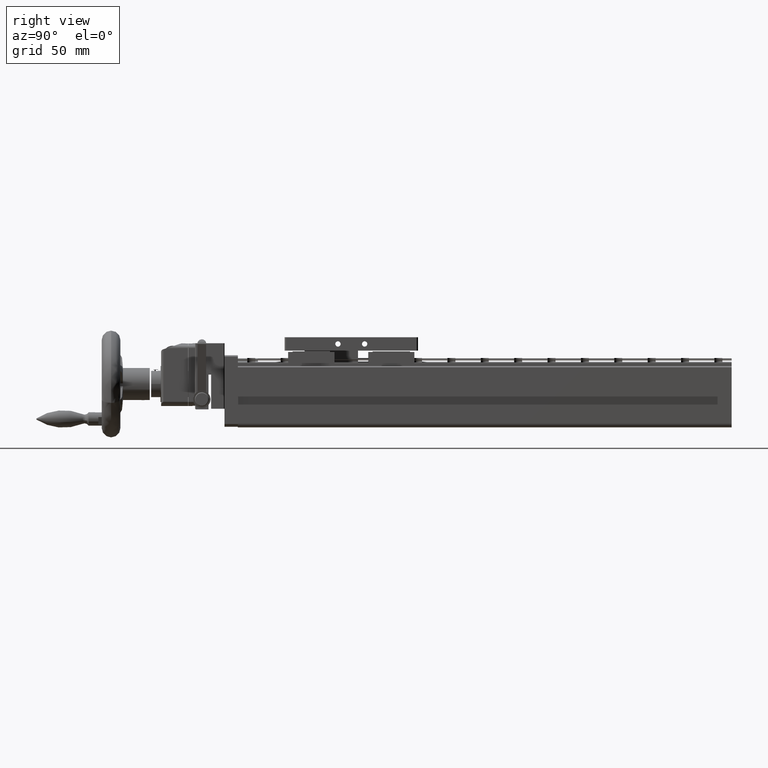
[diagram: clean part render]
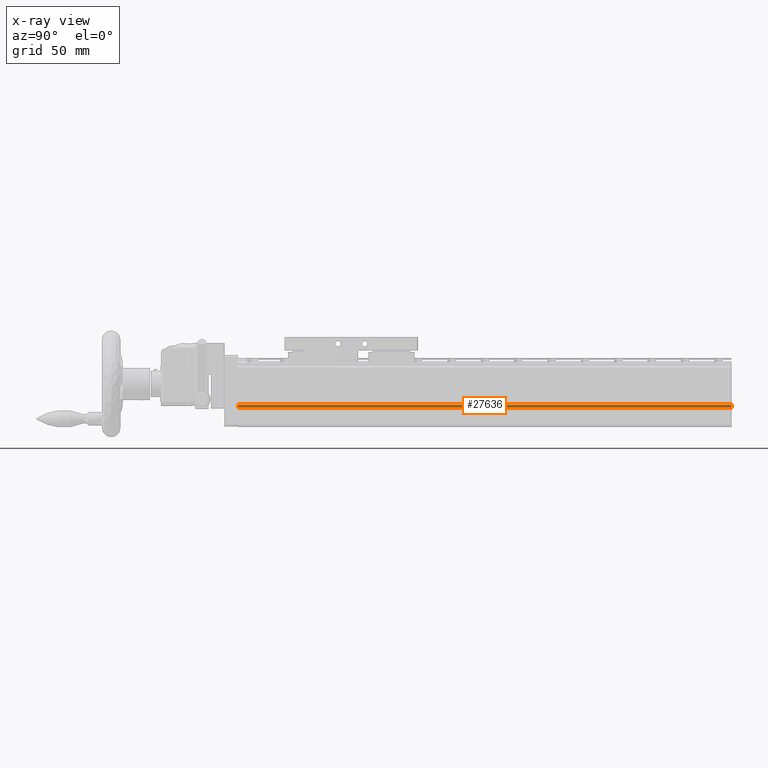
[diagram: x-ray — body ghosted, one internal face saturated and labeled with its STEP entity id]
A machine part, right view, then the same camera in x-ray: the body is ghosted and one INTERNAL B-rep face — a face not visible from any outside direction — is saturated and labeled: STEP entity #27636.
In plain terms, the highlighted planar face has unit normal (-1, 0, 0).
Its self-contained STEP definition (entity closure, byte-faithful):
#799 = LINE ( 'NONE', #14494, #39081 ) ;
#2997 = FACE_OUTER_BOUND ( 'NONE', #11219, .T. ) ;
#5908 = DIRECTION ( 'NONE',  ( -1.000000000000000000, 3.491481338843133355E-15, 3.491481338843133355E-15 ) ) ;
#6712 = LINE ( 'NONE', #40781, #13775 ) ;
#6877 = DIRECTION ( 'NONE',  ( 3.491481338843133750E-15, 2.438088387897968177E-29, 1.000000000000000000 ) ) ;
#7158 = DIRECTION ( 'NONE',  ( 3.491481338843133355E-15, 1.000000000000000000, -3.657132581846951845E-29 ) ) ;
#8890 = EDGE_CURVE ( 'NONE', #22752, #31972, #31045, .T. ) ;
#9789 = LINE ( 'NONE', #36670, #23463 ) ;
#9967 = CARTESIAN_POINT ( 'NONE',  ( 45.37352052019849680, -133.0472645979089918, -5.250000000001975309 ) ) ;
#10402 = VERTEX_POINT ( 'NONE', #24511 ) ;
#11219 = EDGE_LOOP ( 'NONE', ( #21956, #24208, #37149, #35093 ) ) ;
#11418 = VERTEX_POINT ( 'NONE', #44019 ) ;
#12870 = CARTESIAN_POINT ( 'NONE',  ( 45.37352052019982551, 236.9527354020909797, -5.250000000001975309 ) ) ;
#13096 = PLANE ( 'NONE',  #23272 ) ;
#13775 = VECTOR ( 'NONE', #7158, 1000.000000000000000 ) ;
#14494 = CARTESIAN_POINT ( 'NONE',  ( 45.37352052019849680, -133.0472645979089918, -5.250000000001975309 ) ) ;
#16447 = DIRECTION ( 'NONE',  ( -3.491481338843133355E-15, -1.000000000000000000, 3.657132581846951845E-29 ) ) ;
#17116 = CARTESIAN_POINT ( 'NONE',  ( 45.37352052019982551, 236.9527354020909797, -5.250000000001975309 ) ) ;
#18816 = EDGE_CURVE ( 'NONE', #11418, #22752, #6712, .T. ) ;
#20958 = DIRECTION ( 'NONE',  ( 3.491481338843133750E-15, 2.438088387897968177E-29, 1.000000000000000000 ) ) ;
#21956 = ORIENTED_EDGE ( 'NONE', *, *, #8890, .F. ) ;
#22752 = VERTEX_POINT ( 'NONE', #12870 ) ;
#23272 = AXIS2_PLACEMENT_3D ( 'NONE', #9967, #5908, #16447 ) ;
#23463 = VECTOR ( 'NONE', #33108, 1000.000000000000000 ) ;
#24208 = ORIENTED_EDGE ( 'NONE', *, *, #18816, .F. ) ;
#24511 = CARTESIAN_POINT ( 'NONE',  ( 45.37352052019861048, -133.0472645979089918, -3.000000000001890044 ) ) ;
#27163 = VECTOR ( 'NONE', #20958, 1000.000000000000000 ) ;
#27636 = ADVANCED_FACE ( 'NONE', ( #2997 ), #13096, .T. ) ;
#31045 = LINE ( 'NONE', #17116, #27163 ) ;
#31972 = VERTEX_POINT ( 'NONE', #43959 ) ;
#32241 = EDGE_CURVE ( 'NONE', #10402, #31972, #9789, .T. ) ;
#33108 = DIRECTION ( 'NONE',  ( 3.491481338843133355E-15, 1.000000000000000000, -3.657132581846951845E-29 ) ) ;
#35093 = ORIENTED_EDGE ( 'NONE', *, *, #32241, .T. ) ;
#36670 = CARTESIAN_POINT ( 'NONE',  ( 45.37352052019861048, -133.0472645979089918, -3.000000000001890044 ) ) ;
#37149 = ORIENTED_EDGE ( 'NONE', *, *, #43555, .T. ) ;
#39081 = VECTOR ( 'NONE', #6877, 1000.000000000000000 ) ;
#40781 = CARTESIAN_POINT ( 'NONE',  ( 45.37352052019849680, -133.0472645979089918, -5.250000000001975309 ) ) ;
#43555 = EDGE_CURVE ( 'NONE', #11418, #10402, #799, .T. ) ;
#43959 = CARTESIAN_POINT ( 'NONE',  ( 45.37352052019993920, 236.9527354020909797, -3.000000000001890044 ) ) ;
#44019 = CARTESIAN_POINT ( 'NONE',  ( 45.37352052019849680, -133.0472645979089918, -5.250000000001975309 ) ) ;